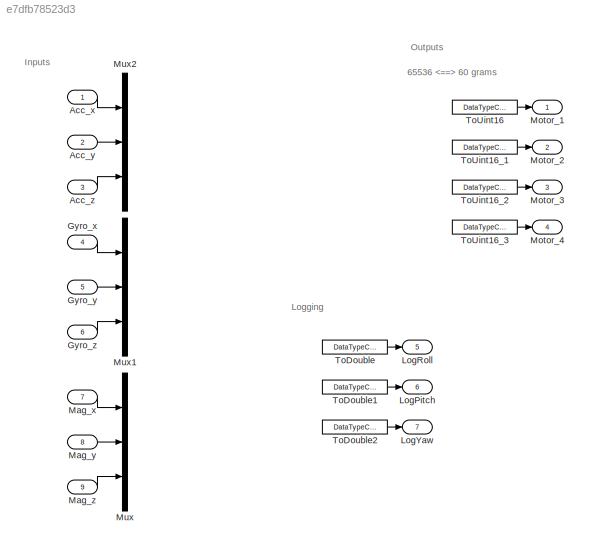
MODEL slx_e7dfb78523d3
KIND model
CONFIG AbsTol = auto
CONFIG EnableMultiTasking = off
CONFIG FixedStep = 0.01
CONFIG MaxStep = auto
CONFIG MinStep = auto
CONFIG RelTol = 1e-3
CONFIG SampleTimeConstraint = Unconstrained
CONFIG Solver = FixedStepDiscrete
CONFIG SolverName = FixedStepDiscrete
CONFIG StartTime = 0.0
CONFIG StopTime = 25
BLOCK [Inport] Acc_x
  IconDisplay = Port number
  OutDataTypeStr = double
  PortDimensions = 1
  SignalType = real
  VarSizeSig = No
BLOCK [Inport] Acc_y
  IconDisplay = Port number
  OutDataTypeStr = double
  Port = 2
  PortDimensions = 1
  SignalType = real
  VarSizeSig = No
BLOCK [Inport] Acc_z
  IconDisplay = Port number
  OutDataTypeStr = double
  Port = 3
  PortDimensions = 1
  SignalType = real
  VarSizeSig = No
BLOCK [Inport] Gyro_x
  IconDisplay = Port number
  OutDataTypeStr = double
  Port = 4
  PortDimensions = 1
  SignalType = real
  VarSizeSig = No
BLOCK [Inport] Gyro_y
  IconDisplay = Port number
  OutDataTypeStr = double
  Port = 5
  PortDimensions = 1
  SignalType = real
  VarSizeSig = No
BLOCK [Inport] Gyro_z
  IconDisplay = Port number
  OutDataTypeStr = double
  Port = 6
  PortDimensions = 1
  SignalType = real
  VarSizeSig = No
BLOCK [Outport] LogPitch
  IconDisplay = Port number
  OutDataTypeStr = double
  Port = 6
BLOCK [Outport] LogRoll
  IconDisplay = Port number
  OutDataTypeStr = double
  Port = 5
BLOCK [Outport] LogYaw
  IconDisplay = Port number
  OutDataTypeStr = double
  Port = 7
BLOCK [Inport] Mag_x
  IconDisplay = Port number
  Port = 7
BLOCK [Inport] Mag_y
  IconDisplay = Port number
  Port = 8
BLOCK [Inport] Mag_z
  IconDisplay = Port number
  Port = 9
BLOCK [Outport] Motor_1
  IconDisplay = Port number
  LockScale = on
  OutDataTypeStr = uint16
BLOCK [Outport] Motor_2
  IconDisplay = Port number
  LockScale = on
  OutDataTypeStr = uint16
  Port = 2
BLOCK [Outport] Motor_3
  IconDisplay = Port number
  LockScale = on
  OutDataTypeStr = uint16
  Port = 3
BLOCK [Outport] Motor_4
  IconDisplay = Port number
  LockScale = on
  OutDataTypeStr = uint16
  Port = 4
BLOCK [Mux] Mux
  DisplayOption = bar
  Inputs = 3
  Ports = [3, 1]
BLOCK [Mux] Mux1
  DisplayOption = bar
  Inputs = 3
  Ports = [3, 1]
BLOCK [Mux] Mux2
  DisplayOption = bar
  Inputs = 3
  Ports = [3, 1]
BLOCK [DataTypeConversion] ToDouble
  OutDataTypeStr = double
  RndMeth = Floor
BLOCK [DataTypeConversion] ToDouble1
  OutDataTypeStr = double
  RndMeth = Floor
BLOCK [DataTypeConversion] ToDouble2
  OutDataTypeStr = double
  RndMeth = Floor
BLOCK [DataTypeConversion] ToUint16
  OutDataTypeStr = uint16
  RndMeth = Floor
BLOCK [DataTypeConversion] ToUint16_1
  OutDataTypeStr = uint16
  RndMeth = Floor
BLOCK [DataTypeConversion] ToUint16_2
  OutDataTypeStr = uint16
  RndMeth = Floor
BLOCK [DataTypeConversion] ToUint16_3
  OutDataTypeStr = uint16
  RndMeth = Floor
ANNOTATION (root): 65536 60 grams
ANNOTATION (root): Inputs
ANNOTATION (root): Logging
ANNOTATION (root): Outputs
LINE Acc_x:1 -> Mux2:1
LINE Acc_y:1 -> Mux2:2
LINE Acc_z:1 -> Mux2:3
LINE Gyro_x:1 -> Mux1:1
LINE Gyro_y:1 -> Mux1:2
LINE Gyro_z:1 -> Mux1:3
LINE Mag_x:1 -> Mux:1
LINE Mag_y:1 -> Mux:2
LINE Mag_z:1 -> Mux:3
LINE ToDouble1:1 -> LogPitch:1
LINE ToDouble2:1 -> LogYaw:1
LINE ToDouble:1 -> LogRoll:1
LINE ToUint16:1 -> Motor_1:1
LINE ToUint16_1:1 -> Motor_2:1
LINE ToUint16_2:1 -> Motor_3:1
LINE ToUint16_3:1 -> Motor_4:1
